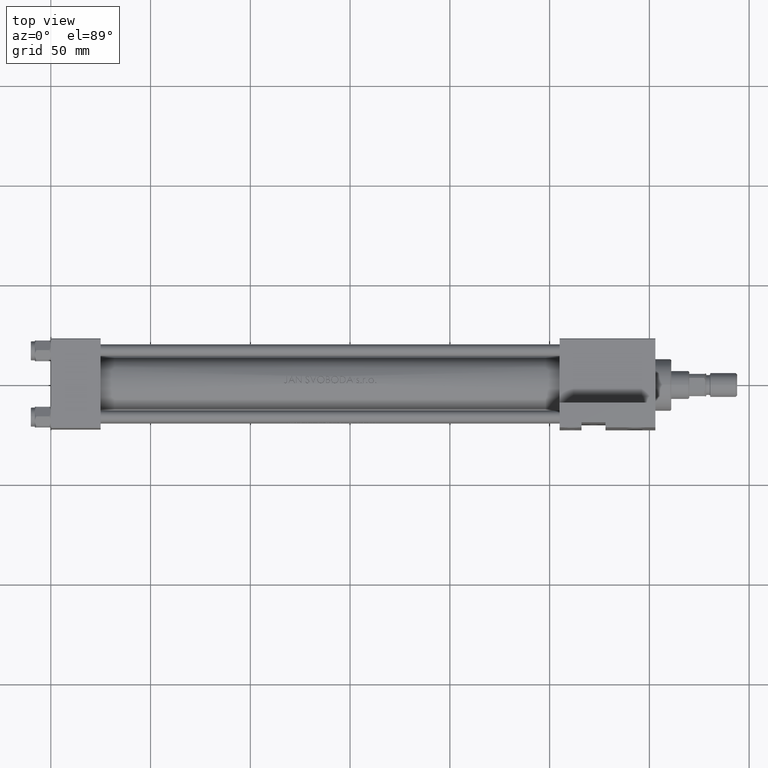
[diagram: clean part render]
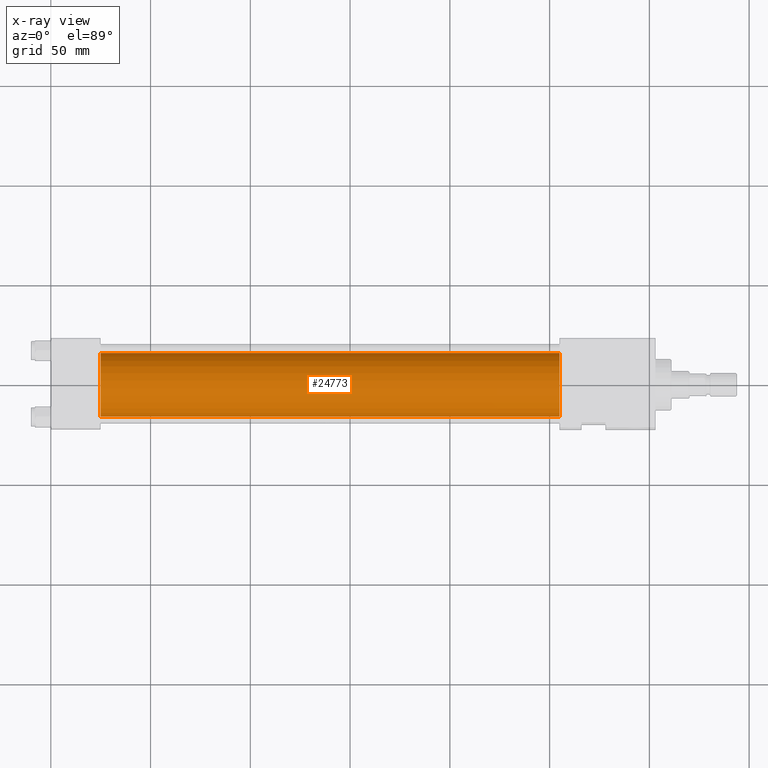
[diagram: x-ray — body ghosted, one internal face saturated and labeled with its STEP entity id]
A machine part, top view, then the same camera in x-ray: the body is ghosted and one INTERNAL B-rep face — a face not visible from any outside direction — is saturated and labeled: STEP entity #24773.
In plain terms, the highlighted cylindrical surface (edge-blend (fillet) strip) has radius 16 mm, axis along (-1, -0, 0).
Its self-contained STEP definition (entity closure, byte-faithful):
#3549 = DIRECTION ( 'NONE',  ( -1.000000000000000000, -0.000000000000000000, -0.000000000000000000 ) ) ;
#3783 = CARTESIAN_POINT ( 'NONE',  ( 255.0000000000000000, 2.020667218593132311E-15, -16.49999999999999645 ) ) ;
#4170 = ORIENTED_EDGE ( 'NONE', *, *, #18955, .T. ) ;
#5170 = DIRECTION ( 'NONE',  ( 0.000000000000000000, 0.000000000000000000, 1.000000000000000000 ) ) ;
#5884 = CARTESIAN_POINT ( 'NONE',  ( 255.0000000000000000, 6.123233995736727825E-17, -0.4999999999999970024 ) ) ;
#6060 = ORIENTED_EDGE ( 'NONE', *, *, #27280, .F. ) ;
#7050 = CARTESIAN_POINT ( 'NONE',  ( 255.0000000000000000, 2.020667218593132311E-15, -16.49999999999999645 ) ) ;
#10345 = EDGE_CURVE ( 'NONE', #18308, #37751, #33978, .T. ) ;
#10871 = DIRECTION ( 'NONE',  ( -1.000000000000000000, -0.000000000000000000, -0.000000000000000000 ) ) ;
#12943 = AXIS2_PLACEMENT_3D ( 'NONE', #19112, #37850, #38084 ) ;
#14003 = CARTESIAN_POINT ( 'NONE',  ( 255.0000000000000000, 6.123233995736727825E-17, -0.4999999999999970024 ) ) ;
#15112 = VECTOR ( 'NONE', #10871, 1000.000000000000000 ) ;
#18162 = LINE ( 'NONE', #3783, #22668 ) ;
#18308 = VERTEX_POINT ( 'NONE', #36343 ) ;
#18955 = EDGE_CURVE ( 'NONE', #29411, #25186, #28841, .T. ) ;
#19112 = CARTESIAN_POINT ( 'NONE',  ( 25.00000000000000000, 6.123233995736727825E-17, -0.4999999999999970024 ) ) ;
#22668 = VECTOR ( 'NONE', #3549, 1000.000000000000000 ) ;
#23353 = AXIS2_PLACEMENT_3D ( 'NONE', #14003, #47378, #28879 ) ;
#24027 = AXIS2_PLACEMENT_3D ( 'NONE', #5884, #38523, #5170 ) ;
#24260 = ORIENTED_EDGE ( 'NONE', *, *, #10345, .F. ) ;
#24773 = ADVANCED_FACE ( 'NONE', ( #39006 ), #42664, .F. ) ;
#25186 = VERTEX_POINT ( 'NONE', #7050 ) ;
#26940 = EDGE_LOOP ( 'NONE', ( #4170, #32263, #24260, #6060 ) ) ;
#27095 = CARTESIAN_POINT ( 'NONE',  ( 25.00000000000000000, 2.020667218593132311E-15, -16.49999999999999645 ) ) ;
#27280 = EDGE_CURVE ( 'NONE', #29411, #18308, #36941, .T. ) ;
#28841 = CIRCLE ( 'NONE', #23353, 16.00000000000000000 ) ;
#28879 = DIRECTION ( 'NONE',  ( 0.000000000000000000, 0.000000000000000000, -1.000000000000000000 ) ) ;
#29411 = VERTEX_POINT ( 'NONE', #32660 ) ;
#32263 = ORIENTED_EDGE ( 'NONE', *, *, #41137, .T. ) ;
#32660 = CARTESIAN_POINT ( 'NONE',  ( 255.0000000000000000, 6.123233995736727825E-17, 15.50000000000000355 ) ) ;
#33978 = CIRCLE ( 'NONE', #12943, 16.00000000000000000 ) ;
#36343 = CARTESIAN_POINT ( 'NONE',  ( 25.00000000000000000, 6.123233995736727825E-17, 15.50000000000000355 ) ) ;
#36941 = LINE ( 'NONE', #39867, #15112 ) ;
#37751 = VERTEX_POINT ( 'NONE', #27095 ) ;
#37850 = DIRECTION ( 'NONE',  ( 1.000000000000000000, 0.000000000000000000, 0.000000000000000000 ) ) ;
#38084 = DIRECTION ( 'NONE',  ( 0.000000000000000000, 0.000000000000000000, -1.000000000000000000 ) ) ;
#38523 = DIRECTION ( 'NONE',  ( -1.000000000000000000, -0.000000000000000000, -0.000000000000000000 ) ) ;
#39006 = FACE_OUTER_BOUND ( 'NONE', #26940, .T. ) ;
#39867 = CARTESIAN_POINT ( 'NONE',  ( 255.0000000000000000, 6.123233995736727825E-17, 15.50000000000000355 ) ) ;
#41137 = EDGE_CURVE ( 'NONE', #25186, #37751, #18162, .T. ) ;
#42664 = CYLINDRICAL_SURFACE ( 'NONE', #24027, 16.00000000000000000 ) ;
#47378 = DIRECTION ( 'NONE',  ( 1.000000000000000000, 0.000000000000000000, 0.000000000000000000 ) ) ;